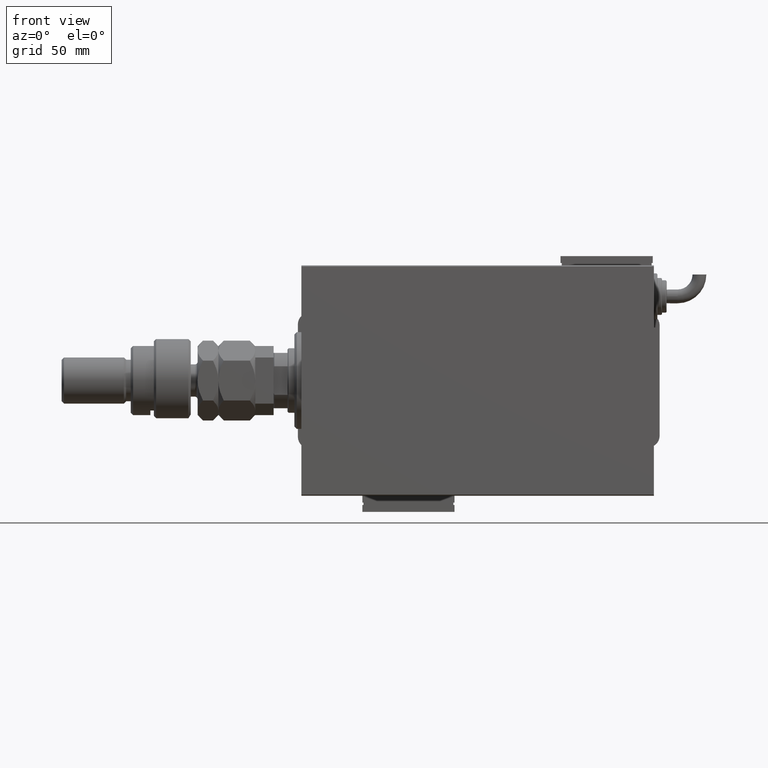
[diagram: clean part render]
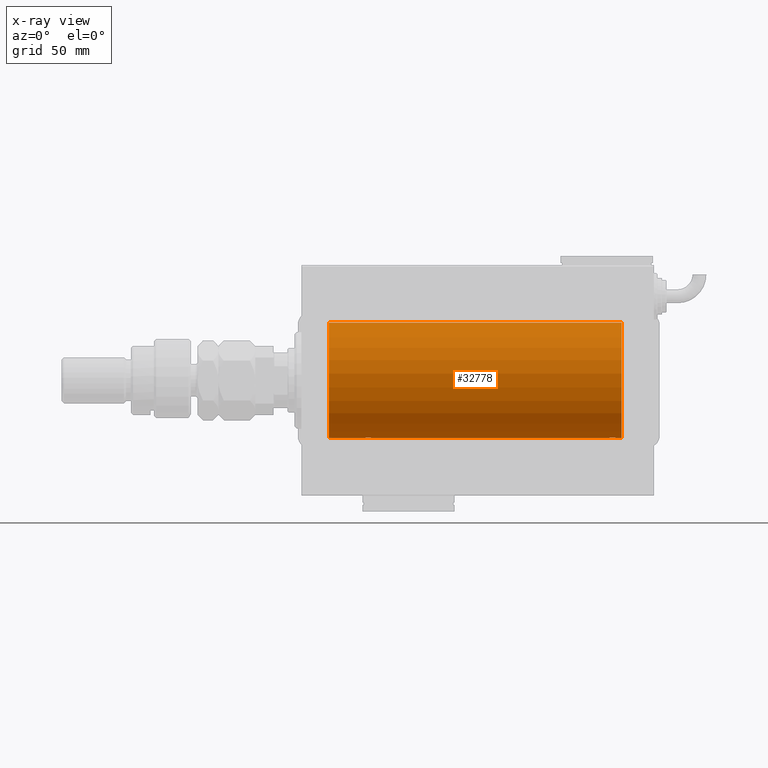
[diagram: x-ray — body ghosted, one internal face saturated and labeled with its STEP entity id]
A machine part, front view, then the same camera in x-ray: the body is ghosted and one INTERNAL B-rep face — a face not visible from any outside direction — is saturated and labeled: STEP entity #32778.
In plain terms, the highlighted cylindrical surface (partial cylindrical patch) has radius 25 mm, axis along (-1, -0, -0).
Its self-contained STEP definition (entity closure, byte-faithful):
#514 = CARTESIAN_POINT ( 'NONE',  ( 137.5000000000000000, 3.061616978453486307E-15, -25.00000000000000000 ) ) ;
#985 = ORIENTED_EDGE ( 'NONE', *, *, #62651, .F. ) ;
#1166 = CARTESIAN_POINT ( 'NONE',  ( 31.50000000000000000, 3.061616978460191625E-15, -25.00000000000000000 ) ) ;
#1718 = CARTESIAN_POINT ( 'NONE',  ( 29.16706495178060621, -2.499872792855077464, -24.87469871246082320 ) ) ;
#2277 = CARTESIAN_POINT ( 'NONE',  ( 136.2538319542450722, -2.169003991399869324, -24.90589728951138682 ) ) ;
#3443 = CARTESIAN_POINT ( 'NONE',  ( 133.3487886644089144, -1.884161199660626229, -24.92916496727982789 ) ) ;
#3764 = CARTESIAN_POINT ( 'NONE',  ( 134.8367641036145699, -2.500125740978196731, -24.87467329022544504 ) ) ;
#4253 = EDGE_CURVE ( 'NONE', #8538, #54457, #56772, .T. ) ;
#4758 = VERTEX_POINT ( 'NONE', #47871 ) ;
#5884 = EDGE_CURVE ( 'NONE', #8538, #30699, #51094, .T. ) ;
#6156 = DIRECTION ( 'NONE',  ( 0.000000000000000000, 0.000000000000000000, 1.000000000000000000 ) ) ;
#6244 = DIRECTION ( 'NONE',  ( 0.000000000000000000, 0.000000000000000000, 1.000000000000000000 ) ) ;
#6482 = CARTESIAN_POINT ( 'NONE',  ( 26.50000000000000000, -0.3305063766663763336, -25.00000000000000355 ) ) ;
#6878 = DIRECTION ( 'NONE',  ( -1.000000000000000000, -0.000000000000000000, -0.000000000000000000 ) ) ;
#7064 = CARTESIAN_POINT ( 'NONE',  ( 137.5000000000000000, 3.061616978453486307E-15, -25.00000000000000000 ) ) ;
#7128 = CARTESIAN_POINT ( 'NONE',  ( 30.25383195424502958, -2.169003991399867104, -24.90589728951138326 ) ) ;
#7395 = AXIS2_PLACEMENT_3D ( 'NONE', #49631, #16129, #6244 ) ;
#7574 = AXIS2_PLACEMENT_3D ( 'NONE', #51527, #6878, #36515 ) ;
#8538 = VERTEX_POINT ( 'NONE', #40648 ) ;
#8897 = DIRECTION ( 'NONE',  ( -1.000000000000000000, -0.000000000000000000, -0.000000000000000000 ) ) ;
#9181 = CARTESIAN_POINT ( 'NONE',  ( 135.8078834240580761, -2.371528299825742092, -24.88734287464371775 ) ) ;
#10479 = CARTESIAN_POINT ( 'NONE',  ( 12.00000000000001066, 3.061616997868383043E-15, -25.00000000000000000 ) ) ;
#10797 = CARTESIAN_POINT ( 'NONE',  ( 139.0000000000000000, 3.061616997868383043E-15, -25.00000000000000000 ) ) ;
#11212 = CARTESIAN_POINT ( 'NONE',  ( 137.4201490922092717, -0.6480119923854171793, -24.99212088949390775 ) ) ;
#11269 = CARTESIAN_POINT ( 'NONE',  ( 29.80788342405805835, -2.371528299825741648, -24.88734287464370709 ) ) ;
#11519 = CARTESIAN_POINT ( 'NONE',  ( 137.4841784005765817, -0.3254210271412169564, -24.99840249400844527 ) ) ;
#12223 = CARTESIAN_POINT ( 'NONE',  ( 30.52536182243081342, -1.987446652080259391, -24.92104239223420592 ) ) ;
#12522 = DIRECTION ( 'NONE',  ( -1.000000000000000000, 0.000000000000000000, 0.000000000000000000 ) ) ;
#12880 = ORIENTED_EDGE ( 'NONE', *, *, #20134, .T. ) ;
#13028 = CARTESIAN_POINT ( 'NONE',  ( 132.5000000000000000, -0.3305063766663871583, -25.00000000000000000 ) ) ;
#13335 = CARTESIAN_POINT ( 'NONE',  ( 132.7539362090593045, -1.109818057797421043, -24.97580694515541921 ) ) ;
#13376 = VERTEX_POINT ( 'NONE', #1166 ) ;
#14283 = CARTESIAN_POINT ( 'NONE',  ( 134.1956433908370059, -2.372734907014174777, -24.88722742718433167 ) ) ;
#15893 = DIRECTION ( 'NONE',  ( -1.000000000000000000, -0.000000000000000000, -0.000000000000000000 ) ) ;
#16055 = CARTESIAN_POINT ( 'NONE',  ( 31.42014909220930363, -0.6480119923854200659, -24.99212088949392196 ) ) ;
#16129 = DIRECTION ( 'NONE',  ( -1.000000000000000000, 0.000000000000000000, 0.000000000000000000 ) ) ;
#16314 = CARTESIAN_POINT ( 'NONE',  ( 136.8841238278646983, -1.651251241585105944, -24.94567559498349141 ) ) ;
#16374 = CARTESIAN_POINT ( 'NONE',  ( 27.74915976075945068, -2.170728182476717283, -24.90574631553725027 ) ) ;
#17008 = CARTESIAN_POINT ( 'NONE',  ( 30.65383336149337978, -1.881857718844712091, -24.92933960374833546 ) ) ;
#17271 = ORIENTED_EDGE ( 'NONE', *, *, #29370, .T. ) ;
#17320 = CARTESIAN_POINT ( 'NONE',  ( 31.24760251019550950, -1.106703319666878071, -24.97594585958023572 ) ) ;
#18213 = EDGE_CURVE ( 'NONE', #13376, #37290, #48589, .T. ) ;
#18455 = DIRECTION ( 'NONE',  ( -1.000000000000000000, -0.000000000000000000, -0.000000000000000000 ) ) ;
#19056 = CARTESIAN_POINT ( 'NONE',  ( 135.6490439016909590, -2.419770561643903140, -24.88263927071751169 ) ) ;
#19088 = EDGE_LOOP ( 'NONE', ( #55576, #52266, #29131, #12880, #50319, #59826, #17271, #985 ) ) ;
#20134 = EDGE_CURVE ( 'NONE', #55358, #13376, #42066, .T. ) ;
#20832 = CARTESIAN_POINT ( 'NONE',  ( 31.48417840057656747, -0.3254210271412200650, -24.99840249400844527 ) ) ;
#21096 = CARTESIAN_POINT ( 'NONE',  ( 137.3721596940860650, -0.8058335233485420801, -24.98746277938383287 ) ) ;
#21154 = CARTESIAN_POINT ( 'NONE',  ( 27.47743225659810307, -1.989585286700244149, -24.92087098724765681 ) ) ;
#21778 = CARTESIAN_POINT ( 'NONE',  ( 29.32947680114268252, -2.483544361357266084, -24.87635491893501083 ) ) ;
#22886 = CARTESIAN_POINT ( 'NONE',  ( 133.4774322565981208, -1.989585286700256805, -24.92087098724766747 ) ) ;
#23200 = CARTESIAN_POINT ( 'NONE',  ( 132.5000000000000000, -1.188716680102861075E-14, -25.00000000000000000 ) ) ;
#25346 = EDGE_CURVE ( 'NONE', #54457, #55358, #26623, .T. ) ;
#25931 = CARTESIAN_POINT ( 'NONE',  ( 26.50000000000000355, -4.113702575029848227E-15, -25.00000000000000000 ) ) ;
#26508 = CARTESIAN_POINT ( 'NONE',  ( 137.1701129028092225, -1.252049606094327583, -24.96900299967627390 ) ) ;
#26623 = B_SPLINE_CURVE_WITH_KNOTS ( 'NONE', 3,
 ( #7064, #54919, #11519, #11212, #21096, #30650, #26508, #40541, #16314, #45959, #55232, #2277, #62439, #9181, #19056, #33405, #37557, #3764, #48395, #60651, #14283, #53198, #32467, #22886, #3443, #47444, #33722, #57045, #13335, #42343, #13028, #23200 ),
 .UNSPECIFIED., .F., .F.,
 ( 4, 2, 2, 2, 2, 2, 2, 2, 2, 2, 2, 2, 2, 2, 2, 4 ),
 ( 0.007821024441662289411, 0.008309723826317897549, 0.008798423210973505687, 0.009287122595629115560, 0.009775821980284723697, 0.01026452136494033357, 0.01075322074959594171, 0.01124192013425155158, 0.01173061951890715972, 0.01221931890356276786, 0.01270801828821837773, 0.01319671767287398587, 0.01368541705752959400, 0.01417411644218520214, 0.01466281582684081028, 0.01564021459615199533 ),
 .UNSPECIFIED. ) ;
#28195 = CARTESIAN_POINT ( 'NONE',  ( 26.50000000000000355, -4.113702575029848227E-15, -25.00000000000000000 ) ) ;
#29131 = ORIENTED_EDGE ( 'NONE', *, *, #25346, .T. ) ;
#29370 = EDGE_CURVE ( 'NONE', #58209, #4758, #34869, .T. ) ;
#30650 = CARTESIAN_POINT ( 'NONE',  ( 137.2476025101955202, -1.106703319666879404, -24.97594585958023572 ) ) ;
#30699 = VERTEX_POINT ( 'NONE', #45067 ) ;
#30707 = CARTESIAN_POINT ( 'NONE',  ( 29.64904390169096970, -2.419770561643905804, -24.88263927071751169 ) ) ;
#31666 = CARTESIAN_POINT ( 'NONE',  ( 30.98749815834398902, -1.525407911884361312, -24.95379469572362652 ) ) ;
#31978 = CARTESIAN_POINT ( 'NONE',  ( 28.67403429960540606, -2.484007091859761207, -24.87630842367763506 ) ) ;
#32467 = CARTESIAN_POINT ( 'NONE',  ( 133.7491597607594542, -2.170728182476728829, -24.90574631553724672 ) ) ;
#32725 = AXIS2_PLACEMENT_3D ( 'NONE', #56226, #12522, #6156 ) ;
#32778 = ADVANCED_FACE ( 'NONE', ( #55689 ), #50888, .F. ) ;
#33405 = CARTESIAN_POINT ( 'NONE',  ( 135.3294768011427607, -2.483544361357268748, -24.87635491893502149 ) ) ;
#33722 = CARTESIAN_POINT ( 'NONE',  ( 133.0146196628290340, -1.528152964861320573, -24.95362559291378446 ) ) ;
#34869 = CIRCLE ( 'NONE', #7395, 25.00000000000000000 ) ;
#35495 = CARTESIAN_POINT ( 'NONE',  ( 31.37215969408607563, -0.8058335233485418581, -24.98746277938382931 ) ) ;
#35807 = CARTESIAN_POINT ( 'NONE',  ( 27.01461966282905180, -1.528152964861308138, -24.95362559291378801 ) ) ;
#36277 = LINE ( 'NONE', #60226, #53723 ) ;
#36445 = CARTESIAN_POINT ( 'NONE',  ( 26.83172358506043054, -1.255214705003178555, -24.96884293994578030 ) ) ;
#36515 = DIRECTION ( 'NONE',  ( 0.000000000000000000, 0.000000000000000000, 1.000000000000000000 ) ) ;
#37290 = VERTEX_POINT ( 'NONE', #28195 ) ;
#37557 = CARTESIAN_POINT ( 'NONE',  ( 135.1670649517806169, -2.499872792855082348, -24.87469871246082675 ) ) ;
#40286 = CARTESIAN_POINT ( 'NONE',  ( 28.35439333851368460, -2.420689345803756165, -24.88254961038873958 ) ) ;
#40541 = CARTESIAN_POINT ( 'NONE',  ( 136.9874981583440103, -1.525407911884357315, -24.95379469572362297 ) ) ;
#40601 = CARTESIAN_POINT ( 'NONE',  ( 30.88412382786470900, -1.651251241585097063, -24.94567559498348075 ) ) ;
#40648 = CARTESIAN_POINT ( 'NONE',  ( 139.0000000000000000, 3.061616997868383043E-15, -25.00000000000000000 ) ) ;
#42066 = LINE ( 'NONE', #52272, #59694 ) ;
#42343 = CARTESIAN_POINT ( 'NONE',  ( 132.5665064476025634, -0.6588655613945936240, -24.99312727339970408 ) ) ;
#45067 = CARTESIAN_POINT ( 'NONE',  ( 139.0000000000000000, 0.000000000000000000, 25.00000000000000000 ) ) ;
#45201 = EDGE_CURVE ( 'NONE', #37290, #58209, #59599, .T. ) ;
#45383 = CARTESIAN_POINT ( 'NONE',  ( 31.50000000000000000, -0.1631750940176180942, -25.00000000000001066 ) ) ;
#45959 = CARTESIAN_POINT ( 'NONE',  ( 136.6538333614934118, -1.881857718844720528, -24.92933960374834257 ) ) ;
#47444 = CARTESIAN_POINT ( 'NONE',  ( 133.1181404585135510, -1.653834020452947806, -24.94550385189585029 ) ) ;
#47871 = CARTESIAN_POINT ( 'NONE',  ( 12.00000000000001066, 0.000000000000000000, 25.00000000000000000 ) ) ;
#48395 = CARTESIAN_POINT ( 'NONE',  ( 134.6740342996053812, -2.484007091859767424, -24.87630842367762796 ) ) ;
#48589 = B_SPLINE_CURVE_WITH_KNOTS ( 'NONE', 3,
 ( #60716, #45383, #20832, #16055, #35495, #17320, #59766, #31666, #40601, #17008, #12223, #7128, #55617, #11269, #30707, #21778, #1718, #51450, #31978, #40286, #60082, #55937, #16374, #21154, #54980, #51129, #35807, #36445, #55294, #50176, #6482, #25931 ),
 .UNSPECIFIED., .F., .F.,
 ( 4, 2, 2, 2, 2, 2, 2, 2, 2, 2, 2, 2, 2, 2, 2, 4 ),
 ( 0.007821024441662299820, 0.008309723826317907958, 0.008798423210973517830, 0.009287122595629122498, 0.009775821980284727167, 0.01026452136494033184, 0.01075322074959593650, 0.01124192013425154291, 0.01173061951890714757, 0.01221931890356275051, 0.01270801828821835691, 0.01319671767287396158, 0.01368541705752956625, 0.01417411644218517092, 0.01466281582684077732, 0.01564021459615199186 ),
 .UNSPECIFIED. ) ;
#49631 = CARTESIAN_POINT ( 'NONE',  ( 12.00000000000001066, 0.000000000000000000, 0.000000000000000000 ) ) ;
#50176 = CARTESIAN_POINT ( 'NONE',  ( 26.56650644760252789, -0.6588655613945878509, -24.99312727339970763 ) ) ;
#50319 = ORIENTED_EDGE ( 'NONE', *, *, #18213, .T. ) ;
#50888 = CYLINDRICAL_SURFACE ( 'NONE', #7574, 25.00000000000000000 ) ;
#51094 = CIRCLE ( 'NONE', #32725, 25.00000000000000000 ) ;
#51129 = CARTESIAN_POINT ( 'NONE',  ( 27.11814045851354038, -1.653834020452936038, -24.94550385189584674 ) ) ;
#51277 = DIRECTION ( 'NONE',  ( -1.000000000000000000, -0.000000000000000000, -0.000000000000000000 ) ) ;
#51450 = CARTESIAN_POINT ( 'NONE',  ( 28.83676410361457343, -2.500125740978191846, -24.87467329022545925 ) ) ;
#51527 = CARTESIAN_POINT ( 'NONE',  ( 139.0000000000000000, 0.000000000000000000, 0.000000000000000000 ) ) ;
#52266 = ORIENTED_EDGE ( 'NONE', *, *, #4253, .T. ) ;
#52272 = CARTESIAN_POINT ( 'NONE',  ( 139.0000000000000000, 3.061616997868383043E-15, -25.00000000000000000 ) ) ;
#53057 = VECTOR ( 'NONE', #18455, 1000.000000000000000 ) ;
#53198 = CARTESIAN_POINT ( 'NONE',  ( 133.8927615416158687, -2.247417070759898383, -24.89885693081946272 ) ) ;
#53723 = VECTOR ( 'NONE', #51277, 1000.000000000000000 ) ;
#54457 = VERTEX_POINT ( 'NONE', #514 ) ;
#54919 = CARTESIAN_POINT ( 'NONE',  ( 137.5000000000000284, -0.1631750940176156794, -25.00000000000001421 ) ) ;
#54980 = CARTESIAN_POINT ( 'NONE',  ( 27.34878866440888245, -1.884161199660614017, -24.92916496727982434 ) ) ;
#55232 = CARTESIAN_POINT ( 'NONE',  ( 136.5253618224308525, -1.987446652080261167, -24.92104239223420947 ) ) ;
#55294 = CARTESIAN_POINT ( 'NONE',  ( 26.75393620905933290, -1.109818057797416158, -24.97580694515542277 ) ) ;
#55358 = VERTEX_POINT ( 'NONE', #59936 ) ;
#55576 = ORIENTED_EDGE ( 'NONE', *, *, #5884, .F. ) ;
#55617 = CARTESIAN_POINT ( 'NONE',  ( 30.11036796508864910, -2.245863995402895164, -24.89899750494197406 ) ) ;
#55689 = FACE_OUTER_BOUND ( 'NONE', #19088, .T. ) ;
#55937 = CARTESIAN_POINT ( 'NONE',  ( 27.89276154161591137, -2.247417070759893498, -24.89885693081945917 ) ) ;
#56226 = CARTESIAN_POINT ( 'NONE',  ( 139.0000000000000000, 0.000000000000000000, 0.000000000000000000 ) ) ;
#56772 = LINE ( 'NONE', #62168, #53057 ) ;
#57045 = CARTESIAN_POINT ( 'NONE',  ( 132.8317235850604447, -1.255214705003191877, -24.96884293994577675 ) ) ;
#58209 = VERTEX_POINT ( 'NONE', #10479 ) ;
#59599 = LINE ( 'NONE', #10797, #62925 ) ;
#59694 = VECTOR ( 'NONE', #8897, 1000.000000000000000 ) ;
#59766 = CARTESIAN_POINT ( 'NONE',  ( 31.17011290280925451, -1.252049606094333578, -24.96900299967627745 ) ) ;
#59826 = ORIENTED_EDGE ( 'NONE', *, *, #45201, .T. ) ;
#59936 = CARTESIAN_POINT ( 'NONE',  ( 132.5000000000000000, -1.188716680102861075E-14, -25.00000000000000000 ) ) ;
#60082 = CARTESIAN_POINT ( 'NONE',  ( 28.19564339083698457, -2.372734907014171224, -24.88722742718433523 ) ) ;
#60226 = CARTESIAN_POINT ( 'NONE',  ( 139.0000000000000000, 0.000000000000000000, 25.00000000000000000 ) ) ;
#60651 = CARTESIAN_POINT ( 'NONE',  ( 134.3543933385136881, -2.420689345803765047, -24.88254961038873248 ) ) ;
#60716 = CARTESIAN_POINT ( 'NONE',  ( 31.50000000000000000, 3.061616978460191625E-15, -25.00000000000000000 ) ) ;
#62168 = CARTESIAN_POINT ( 'NONE',  ( 139.0000000000000000, 3.061616997868383043E-15, -25.00000000000000000 ) ) ;
#62439 = CARTESIAN_POINT ( 'NONE',  ( 136.1103679650886988, -2.245863995402891167, -24.89899750494197406 ) ) ;
#62651 = EDGE_CURVE ( 'NONE', #30699, #4758, #36277, .T. ) ;
#62925 = VECTOR ( 'NONE', #15893, 1000.000000000000000 ) ;